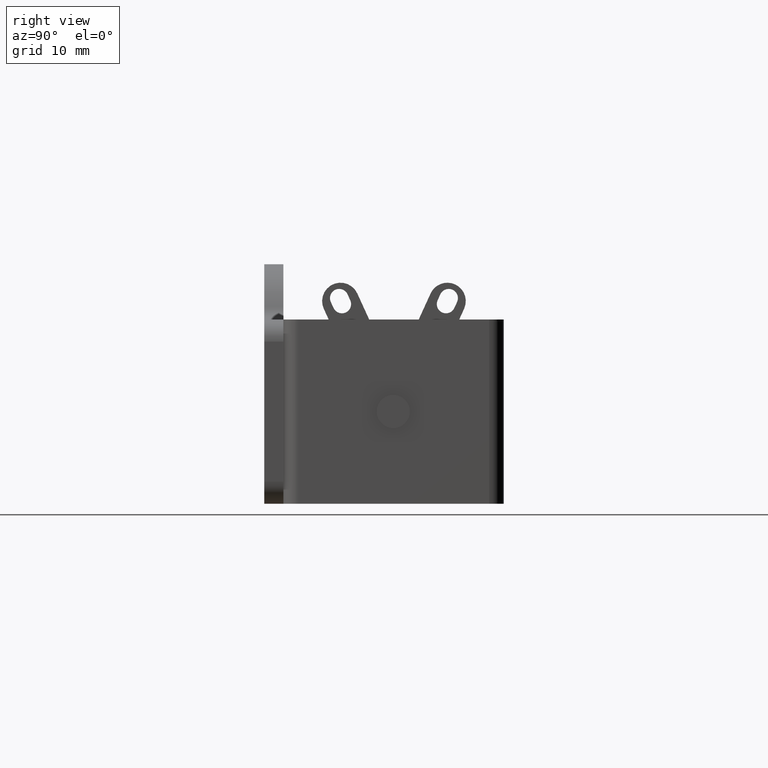
[diagram: clean part render]
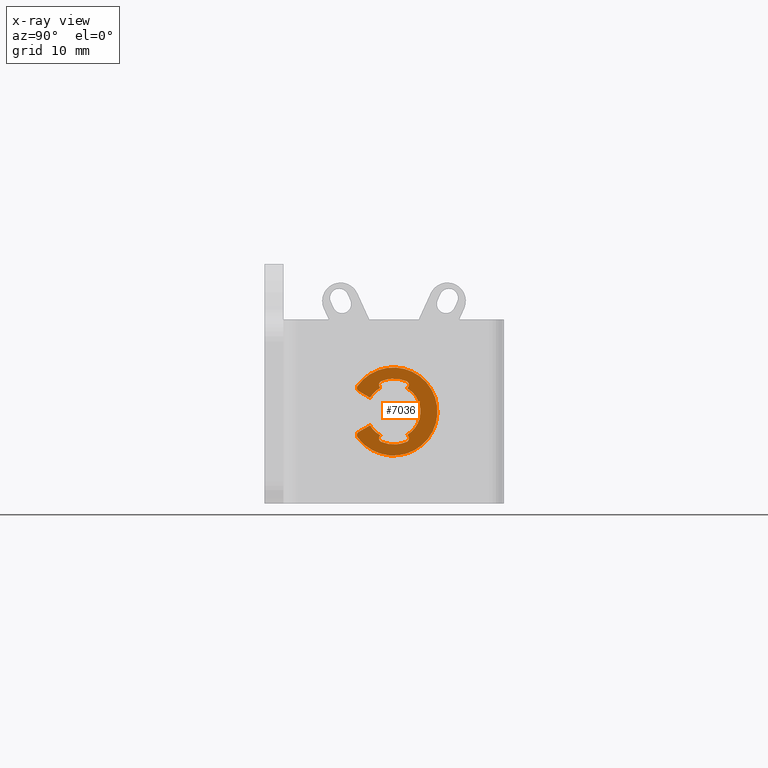
[diagram: x-ray — body ghosted, one internal face saturated and labeled with its STEP entity id]
A machine part, right view, then the same camera in x-ray: the body is ghosted and one INTERNAL B-rep face — a face not visible from any outside direction — is saturated and labeled: STEP entity #7036.
In plain terms, the highlighted face is a freeform B-spline surface patch.
Its self-contained STEP definition (entity closure, byte-faithful):
#5924=CARTESIAN_POINT('',(-13.394188072535799,15.634642578350650,-7.595901090670741));
#5925=VERTEX_POINT('',#5924);
#5940=CARTESIAN_POINT('',(-13.394507521461280,15.740497918040401,-7.779247917265851));
#5941=VERTEX_POINT('',#5940);
#5949=CARTESIAN_POINT('',(-13.394188072535799,15.634642578350650,-7.595901090670741));
#5950=CARTESIAN_POINT('',(-13.394294556154570,15.669927691580080,-7.657016699534936));
#5951=CARTESIAN_POINT('',(-13.394401039166789,15.705212804809969,-7.718132308399925));
#5952=CARTESIAN_POINT('',(-13.394507521461280,15.740497918040401,-7.779247917265852));
#5953=B_SPLINE_CURVE_WITH_KNOTS('',3,(#5949,#5950,#5951,#5952),.UNSPECIFIED.,.F.,.U.,(4,4),(0.000000230940371,0.000211941860757),.UNSPECIFIED.);
#5954=EDGE_CURVE('',#5925,#5941,#5953,.T.);
#5975=CARTESIAN_POINT('',(-13.393885198870960,15.874294017471749,-6.884803029452139));
#5976=VERTEX_POINT('',#5975);
#6009=CARTESIAN_POINT('',(-13.393885198870960,15.874294017471749,-6.884803029452139));
#6010=CARTESIAN_POINT('',(-13.393852671443661,15.841369339470310,-6.898609978234049));
#6011=CARTESIAN_POINT('',(-13.393825569946539,15.810498773929620,-6.915654850024847));
#6012=CARTESIAN_POINT('',(-13.393781847207791,15.752705583860140,-6.955967782170945));
#6013=CARTESIAN_POINT('',(-13.393765168046031,15.725530149280010,-6.979571363412464));
#6014=CARTESIAN_POINT('',(-13.393744094033609,15.677437112314379,-7.031295217031982));
#6015=CARTESIAN_POINT('',(-13.393739443690450,15.656304117774340,-7.059456409271756));
#6016=CARTESIAN_POINT('',(-13.393741593586860,15.629044801567440,-7.105202250649390));
#6017=CARTESIAN_POINT('',(-13.393743870465590,15.620710958097270,-7.121059764872320));
#6018=CARTESIAN_POINT('',(-13.393751430403730,15.605940495012780,-7.153203643918285));
#6019=CARTESIAN_POINT('',(-13.393761991989820,15.592949288055189,-7.185958419383739));
#6020=CARTESIAN_POINT('',(-13.393778529609900,15.583463606698359,-7.219916795028826));
#6021=CARTESIAN_POINT('',(-13.393798143944300,15.575763704385389,-7.254488306670489));
#6022=CARTESIAN_POINT('',(-13.393809566850170,15.572803412661990,-7.272173244827762));
#6023=CARTESIAN_POINT('',(-13.393847827901331,15.566835662745071,-7.325011496777696));
#6024=CARTESIAN_POINT('',(-13.393878707709920,15.566611590933009,-7.360212081242091));
#6025=CARTESIAN_POINT('',(-13.393933187632189,15.571859590484420,-7.412975898005944));
#6026=CARTESIAN_POINT('',(-13.393952848240749,15.574572089893680,-7.430663003318383));
#6027=CARTESIAN_POINT('',(-13.393994357116981,15.581831283746670,-7.465444634490916));
#6028=CARTESIAN_POINT('',(-13.394016147613829,15.586357089012740,-7.482508621703020));
#6029=CARTESIAN_POINT('',(-13.394084563311630,15.602546214547230,-7.532748147570711));
#6030=CARTESIAN_POINT('',(-13.394134201421810,15.616791491257620,-7.564982100855305));
#6031=CARTESIAN_POINT('',(-13.394188072535799,15.634642578350650,-7.595901090670741));
#6032=B_SPLINE_CURVE_WITH_KNOTS('',3,(#6009,#6010,#6011,#6012,#6013,#6014,#6015,#6016,#6017,#6018,#6019,#6020,#6021,#6022,#6023,#6024,#6025,#6026,#6027,#6028,#6029,#6030,#6031),.UNSPECIFIED.,.F.,.U.,(4,2,2,2,2,1,2,2,2,2,2,4),(0.0,0.125000000000003,0.250000000000007,0.375000000000010,0.437500000000009,0.500000000000007,0.562500000000006,0.625000000000004,0.750000000000001,0.812500000000002,0.875000000000002,1.0),.UNSPECIFIED.);
#6033=EDGE_CURVE('',#5976,#5925,#6032,.T.);
#6054=CARTESIAN_POINT('',(-13.397295398578139,19.325705982528302,-6.884803029452139));
#6055=VERTEX_POINT('',#6054);
#6083=CARTESIAN_POINT('',(-13.397295398578100,19.325705982528302,-6.884803029452153));
#6084=CARTESIAN_POINT('',(-13.397024036966860,19.051099161110180,-6.769646783479987));
#6085=CARTESIAN_POINT('',(-13.396745985161161,18.769714089394618,-6.683644664452713));
#6086=CARTESIAN_POINT('',(-13.396319283054661,18.337882995289789,-6.596592486826117));
#6087=CARTESIAN_POINT('',(-13.396175432787491,18.192301405139329,-6.574619879081069));
#6088=CARTESIAN_POINT('',(-13.395957175448590,17.971413645167949,-6.552479917990615));
#6089=CARTESIAN_POINT('',(-13.395883835531770,17.897189250436970,-6.546898846582851));
#6090=CARTESIAN_POINT('',(-13.395737143075980,17.748726482463411,-6.539471806326688));
#6091=CARTESIAN_POINT('',(-13.395663999312250,17.674699407165800,-6.537626456047482));
#6092=CARTESIAN_POINT('',(-13.395299272645170,17.305565202244260,-6.537554276303117));
#6093=CARTESIAN_POINT('',(-13.395010637476290,17.013432520240158,-6.566525376515247));
#6094=CARTESIAN_POINT('',(-13.394653751672630,16.652210810368949,-6.638803935946918));
#6095=CARTESIAN_POINT('',(-13.394582571707630,16.580165485050980,-6.655079428079104));
#6096=CARTESIAN_POINT('',(-13.394440612883409,16.436479679829951,-6.691332261738662));
#6097=CARTESIAN_POINT('',(-13.394369703078860,16.364706658501451,-6.711353505128992));
#6098=CARTESIAN_POINT('',(-13.394158930955079,16.151367037839311,-6.776672591735119));
#6099=CARTESIAN_POINT('',(-13.394020846383450,16.011598165302750,-6.827224597354304));
#6100=CARTESIAN_POINT('',(-13.393885198870960,15.874294017471749,-6.884803029452139));
#6101=B_SPLINE_CURVE_WITH_KNOTS('',3,(#6083,#6084,#6085,#6086,#6087,#6088,#6089,#6090,#6091,#6092,#6093,#6094,#6095,#6096,#6097,#6098,#6099,#6100),.UNSPECIFIED.,.F.,.U.,(4,2,2,2,2,2,2,2,4),(0.0,0.249999999999997,0.374999999999996,0.437499999999998,0.499999999999999,0.749999999999998,0.812499999999998,0.874999999999998,1.0),.UNSPECIFIED.);
#6102=EDGE_CURVE('',#6055,#5976,#6101,.T.);
#6123=CARTESIAN_POINT('',(-13.398062292906401,19.565357421649349,-7.595901090670741));
#6124=VERTEX_POINT('',#6123);
#6157=CARTESIAN_POINT('',(-13.398062292906401,19.565357421649360,-7.595901090670746));
#6158=CARTESIAN_POINT('',(-13.398044339357570,19.583208576796551,-7.564981982982048));
#6159=CARTESIAN_POINT('',(-13.398023485814351,19.597464858522361,-7.532728700831761));
#6160=CARTESIAN_POINT('',(-13.397976135569330,19.619068068129192,-7.465657850617525));
#6161=CARTESIAN_POINT('',(-13.397949273140160,19.626413114996151,-7.430420254409860));
#6162=CARTESIAN_POINT('',(-13.397891721643409,19.633388015655179,-7.360137798465456));
#6163=CARTESIAN_POINT('',(-13.397860965124490,19.633164592696730,-7.324929742665833));
#6164=CARTESIAN_POINT('',(-13.397811636461030,19.627174035098960,-7.272015812567125));
#6165=CARTESIAN_POINT('',(-13.397794636554339,19.624209565430441,-7.254348807667081));
#6166=CARTESIAN_POINT('',(-13.397760334550769,19.616510855707521,-7.219821751636646));
#6167=CARTESIAN_POINT('',(-13.397725533250050,19.607026074690150,-7.185885316579706));
#6168=CARTESIAN_POINT('',(-13.397689685853020,19.594022310422488,-7.153112544718685));
#6169=CARTESIAN_POINT('',(-13.397653274627000,19.579225895935242,-7.120932569427093));
#6170=CARTESIAN_POINT('',(-13.397634690238929,19.570877902608672,-7.105063362146425));
#6171=CARTESIAN_POINT('',(-13.397579243722900,19.543646251432701,-7.059391569342249));
#6172=CARTESIAN_POINT('',(-13.397542406115800,19.522518303766930,-7.031235929663315));
#6173=CARTESIAN_POINT('',(-13.397487195312380,19.486403681489620,-6.992411842008711));
#6174=CARTESIAN_POINT('',(-13.397468689630321,19.473538717791950,-6.979974502527822));
#6175=CARTESIAN_POINT('',(-13.397432284232289,19.446707667845509,-6.956681937655262));
#6176=CARTESIAN_POINT('',(-13.397414416307670,19.432776558754529,-6.945838250287176));
#6177=CARTESIAN_POINT('',(-13.397361769442540,19.389480714159362,-6.915646114012420));
#6178=CARTESIAN_POINT('',(-13.397327934083030,19.358630579157520,-6.898609944110671));
#6179=CARTESIAN_POINT('',(-13.397295398578100,19.325705982528302,-6.884803029452145));
#6180=B_SPLINE_CURVE_WITH_KNOTS('',3,(#6157,#6158,#6159,#6160,#6161,#6162,#6163,#6164,#6165,#6166,#6167,#6168,#6169,#6170,#6171,#6172,#6173,#6174,#6175,#6176,#6177,#6178,#6179),.UNSPECIFIED.,.F.,.U.,(4,2,2,2,2,1,2,2,2,2,2,4),(0.0,0.125000000000005,0.250000000000010,0.375000000000016,0.437500000000017,0.500000000000019,0.562500000000021,0.625000000000023,0.750000000000020,0.812500000000015,0.875000000000009,1.0),.UNSPECIFIED.);
#6181=EDGE_CURVE('',#6124,#6055,#6180,.T.);
#6193=CARTESIAN_POINT('',(-13.398208864458001,19.419618310491099,-7.848328635846780));
#6194=VERTEX_POINT('',#6193);
#6210=CARTESIAN_POINT('',(-13.398208864457990,19.419618310491121,-7.848328635846792));
#6211=CARTESIAN_POINT('',(-13.398160008538481,19.468198014210859,-7.764186120787564));
#6212=CARTESIAN_POINT('',(-13.398111151261830,19.516777717930250,-7.680043605728924));
#6213=CARTESIAN_POINT('',(-13.398062292906401,19.565357421649381,-7.595901090670757));
#6214=B_SPLINE_CURVE_WITH_KNOTS('',3,(#6210,#6211,#6212,#6213),.UNSPECIFIED.,.F.,.U.,(4,4),(0.002773442507184,0.003064920766353),.UNSPECIFIED.);
#6215=EDGE_CURVE('',#6194,#6124,#6214,.T.);
#6227=CARTESIAN_POINT('',(-13.394507521461280,15.740497918040401,-14.220752082734140));
#6228=VERTEX_POINT('',#6227);
#6245=CARTESIAN_POINT('',(-13.394188072535799,15.634642578350650,-14.404098909329260));
#6246=VERTEX_POINT('',#6245);
#6252=CARTESIAN_POINT('',(-13.394507521461280,15.740497918040409,-14.220752082734140));
#6253=CARTESIAN_POINT('',(-13.394401039166789,15.705212804809980,-14.281867691600070));
#6254=CARTESIAN_POINT('',(-13.394294556154570,15.669927691580080,-14.342983300465059));
#6255=CARTESIAN_POINT('',(-13.394188072535799,15.634642578350650,-14.404098909329260));
#6256=B_SPLINE_CURVE_WITH_KNOTS('',3,(#6252,#6253,#6254,#6255),.UNSPECIFIED.,.F.,.U.,(4,4),(0.002853212945607,0.003064923865993),.UNSPECIFIED.);
#6257=EDGE_CURVE('',#6228,#6246,#6256,.T.);
#6305=CARTESIAN_POINT('',(-13.393885198870960,15.874294017471749,-15.115196970547849));
#6306=VERTEX_POINT('',#6305);
#6312=CARTESIAN_POINT('',(-13.394188072535799,15.634642578350650,-14.404098909329260));
#6313=CARTESIAN_POINT('',(-13.394134201276080,15.616791442969641,-14.435017982781950));
#6314=CARTESIAN_POINT('',(-13.394084529779880,15.602535169323160,-14.467271234450910));
#6315=CARTESIAN_POINT('',(-13.393993207705289,15.580931962007901,-14.534342034082970));
#6316=CARTESIAN_POINT('',(-13.393951188131510,15.573586908732990,-14.569579610896200));
#6317=CARTESIAN_POINT('',(-13.393878642568730,15.566611989451481,-14.639862045665581));
#6318=CARTESIAN_POINT('',(-13.393847755204391,15.566835400524820,-14.675070097252931));
#6319=CARTESIAN_POINT('',(-13.393809459809241,15.572825941499740,-14.727984030835479));
#6320=CARTESIAN_POINT('',(-13.393798058731770,15.575790406273709,-14.745651041261960));
#6321=CARTESIAN_POINT('',(-13.393778481960091,15.583489107865899,-14.780178109167910));
#6322=CARTESIAN_POINT('',(-13.393761962302650,15.592973882127369,-14.814114557237270));
#6323=CARTESIAN_POINT('',(-13.393751402536150,15.605977642923440,-14.846887344199869));
#6324=CARTESIAN_POINT('',(-13.393743847084760,15.620774055957471,-14.879067335562571));
#6325=CARTESIAN_POINT('',(-13.393741579563191,15.629122050001801,-14.894936552220759));
#6326=CARTESIAN_POINT('',(-13.393739455731410,15.656353706777400,-14.940608372875561));
#6327=CARTESIAN_POINT('',(-13.393744103931351,15.677481661048740,-14.968764028546129));
#6328=CARTESIAN_POINT('',(-13.393759943554381,15.713596297062820,-15.007588136917921));
#6329=CARTESIAN_POINT('',(-13.393766768439271,15.726461266646210,-15.020025483201509));
#6330=CARTESIAN_POINT('',(-13.393783229458229,15.753292323285160,-15.043318055406241));
#6331=CARTESIAN_POINT('',(-13.393792828191611,15.767223435219959,-15.054161745310090));
#6332=CARTESIAN_POINT('',(-13.393825590119819,15.810519286369260,-15.084353886757970));
#6333=CARTESIAN_POINT('',(-13.393852671526339,15.841369423152260,-15.101390056857939));
#6334=CARTESIAN_POINT('',(-13.393885198870960,15.874294017471749,-15.115196970547849));
#6335=B_SPLINE_CURVE_WITH_KNOTS('',3,(#6312,#6313,#6314,#6315,#6316,#6317,#6318,#6319,#6320,#6321,#6322,#6323,#6324,#6325,#6326,#6327,#6328,#6329,#6330,#6331,#6332,#6333,#6334),.UNSPECIFIED.,.F.,.U.,(4,2,2,2,2,1,2,2,2,2,2,4),(0.0,0.125000000000003,0.250000000000006,0.375000000000008,0.437500000000010,0.500000000000012,0.562500000000014,0.625000000000015,0.750000000000019,0.812500000000014,0.875000000000009,1.0),.UNSPECIFIED.);
#6336=EDGE_CURVE('',#6246,#6306,#6335,.T.);
#6379=CARTESIAN_POINT('',(-13.397295398578139,19.325705982528302,-15.115196970547849));
#6380=VERTEX_POINT('',#6379);
#6386=CARTESIAN_POINT('',(-13.393885198870960,15.874294017471749,-15.115196970547849));
#6387=CARTESIAN_POINT('',(-13.394156492439629,16.148900838943032,-15.230353216542319));
#6388=CARTESIAN_POINT('',(-13.394434490769720,16.430285910709170,-15.316355335578359));
#6389=CARTESIAN_POINT('',(-13.394861138204760,16.862117004880609,-15.403407513203160));
#6390=CARTESIAN_POINT('',(-13.395004974501720,17.007698595051739,-15.425380120945119));
#6391=CARTESIAN_POINT('',(-13.395223217727390,17.228586355051331,-15.447520082027850));
#6392=CARTESIAN_POINT('',(-13.395296554075481,17.302810749796912,-15.453101153432669));
#6393=CARTESIAN_POINT('',(-13.395443241779100,17.451273517759599,-15.460528193680659));
#6394=CARTESIAN_POINT('',(-13.395516384359860,17.525300593051739,-15.462373543956071));
#6395=CARTESIAN_POINT('',(-13.395881110980680,17.894434797945749,-15.462445723682890));
#6396=CARTESIAN_POINT('',(-13.396169764889470,18.186567479927099,-15.433474623461230));
#6397=CARTESIAN_POINT('',(-13.396526696099389,18.547789189770231,-15.361196064022749));
#6398=CARTESIAN_POINT('',(-13.396597886244720,18.619834515082619,-15.344920571889450));
#6399=CARTESIAN_POINT('',(-13.396739867589490,18.763520320292599,-15.308667738228159));
#6400=CARTESIAN_POINT('',(-13.396810789761069,18.835293341613710,-15.288646494837550));
#6401=CARTESIAN_POINT('',(-13.397021601900480,19.048632962225732,-15.223327408241380));
#6402=CARTESIAN_POINT('',(-13.397159717044101,19.188401834729351,-15.172775402632251));
#6403=CARTESIAN_POINT('',(-13.397295398578100,19.325705982528302,-15.115196970547840));
#6404=B_SPLINE_CURVE_WITH_KNOTS('',3,(#6386,#6387,#6388,#6389,#6390,#6391,#6392,#6393,#6394,#6395,#6396,#6397,#6398,#6399,#6400,#6401,#6402,#6403),.UNSPECIFIED.,.F.,.U.,(4,2,2,2,2,2,2,2,4),(0.0,0.249999999999998,0.374999999999995,0.437499999999993,0.499999999999992,0.749999999999991,0.812499999999993,0.874999999999994,1.0),.UNSPECIFIED.);
#6405=EDGE_CURVE('',#6306,#6380,#6404,.T.);
#6453=CARTESIAN_POINT('',(-13.398062292906401,19.565357421649349,-14.404098909329260));
#6454=VERTEX_POINT('',#6453);
#6460=CARTESIAN_POINT('',(-13.397295398578100,19.325705982528309,-15.115196970547849));
#6461=CARTESIAN_POINT('',(-13.397327934165620,19.358630662741611,-15.101390020838380));
#6462=CARTESIAN_POINT('',(-13.397361789805499,19.389501224670141,-15.084345150044170));
#6463=CARTESIAN_POINT('',(-13.397432074293009,19.447294400208889,-15.044032229849231));
#6464=CARTESIAN_POINT('',(-13.397468941795379,19.474469824518341,-15.020428659781800));
#6465=CARTESIAN_POINT('',(-13.397542483686721,19.522562848427569,-14.968704830175369));
#6466=CARTESIAN_POINT('',(-13.397579329065090,19.543695836079991,-14.940543654269471));
#6467=CARTESIAN_POINT('',(-13.397634855364309,19.570955144562440,-14.894797846703520));
#6468=CARTESIAN_POINT('',(-13.397653421211810,19.579288988946040,-14.878940339936859));
#6469=CARTESIAN_POINT('',(-13.397689785993530,19.594059455075080,-14.846796475138380));
#6470=CARTESIAN_POINT('',(-13.397725610512500,19.607050684183179,-14.814041721086589));
#6471=CARTESIAN_POINT('',(-13.397760431281190,19.616536353606929,-14.780083356387101));
#6472=CARTESIAN_POINT('',(-13.397794772501699,19.624236263766271,-14.745511863131840));
#6473=CARTESIAN_POINT('',(-13.397811785657780,19.627196561283480,-14.727826930516100));
#6474=CARTESIAN_POINT('',(-13.397861035959890,19.633164330373219,-14.674988674835729));
#6475=CARTESIAN_POINT('',(-13.397891786353821,19.633388413943571,-14.639788088303970));
#6476=CARTESIAN_POINT('',(-13.397934986496111,19.628140432124699,-14.587024269050310));
#6477=CARTESIAN_POINT('',(-13.397948973416760,19.625427939674200,-14.569337165394961));
#6478=CARTESIAN_POINT('',(-13.397975504514321,19.618168750221471,-14.534555501221771));
#6479=CARTESIAN_POINT('',(-13.397988032872590,19.613642945370781,-14.517491497316231));
#6480=CARTESIAN_POINT('',(-13.398023497110470,19.597453815467642,-14.467251920939651));
#6481=CARTESIAN_POINT('',(-13.398044339406130,19.583208528509061,-14.435017933381589));
#6482=CARTESIAN_POINT('',(-13.398062292906401,19.565357421649370,-14.404098909329260));
#6483=B_SPLINE_CURVE_WITH_KNOTS('',3,(#6460,#6461,#6462,#6463,#6464,#6465,#6466,#6467,#6468,#6469,#6470,#6471,#6472,#6473,#6474,#6475,#6476,#6477,#6478,#6479,#6480,#6481,#6482),.UNSPECIFIED.,.F.,.U.,(4,2,2,2,2,1,2,2,2,2,2,4),(0.0,0.125000000000002,0.250000000000004,0.375000000000006,0.437500000000007,0.500000000000007,0.562500000000008,0.625000000000008,0.750000000000011,0.812500000000009,0.875000000000008,1.0),.UNSPECIFIED.);
#6484=EDGE_CURVE('',#6380,#6454,#6483,.T.);
#6504=CARTESIAN_POINT('',(-13.398208864458001,19.419618310491099,-14.151671364153220));
#6505=VERTEX_POINT('',#6504);
#6513=CARTESIAN_POINT('',(-13.398062292906401,19.565357421649381,-14.404098909329241));
#6514=CARTESIAN_POINT('',(-13.398111151261830,19.516777717930260,-14.319956394271079));
#6515=CARTESIAN_POINT('',(-13.398160008538481,19.468198014210859,-14.235813879212440));
#6516=CARTESIAN_POINT('',(-13.398208864457990,19.419618310491121,-14.151671364153209));
#6517=B_SPLINE_CURVE_WITH_KNOTS('',3,(#6513,#6514,#6515,#6516),.UNSPECIFIED.,.F.,.U.,(4,4),(0.000000230940137,0.000291709199306),.UNSPECIFIED.);
#6518=EDGE_CURVE('',#6454,#6505,#6517,.T.);
#6543=CARTESIAN_POINT('',(-13.389782818931220,12.817647507663020,-8.238907501189560));
#6544=VERTEX_POINT('',#6543);
#6545=CARTESIAN_POINT('',(-13.389095905318280,12.661372739547019,-7.514449450230190));
#6546=VERTEX_POINT('',#6545);
#6547=CARTESIAN_POINT('',(-13.389782818931220,12.817647507663020,-8.238907501189560));
#6548=CARTESIAN_POINT('',(-13.389716911730989,12.787243108502761,-8.221353513149840));
#6549=CARTESIAN_POINT('',(-13.389653989596971,12.759206479201049,-8.200943969218802));
#6550=CARTESIAN_POINT('',(-13.389533840031939,12.707680730489621,-8.154640535669831));
#6551=CARTESIAN_POINT('',(-13.389476023225750,12.683975002186530,-8.128389092773757));
#6552=CARTESIAN_POINT('',(-13.389370546696370,12.643057219302349,-8.072221989481784));
#6553=CARTESIAN_POINT('',(-13.389322570193491,12.625681147761330,-8.042285701255082));
#6554=CARTESIAN_POINT('',(-13.389257697030081,12.604286609036070,-7.994574916224741));
#6555=CARTESIAN_POINT('',(-13.389237204118849,12.597926958444679,-7.978131889474806));
#6556=CARTESIAN_POINT('',(-13.389199528374730,12.587081409797729,-7.945032118397355));
#6557=CARTESIAN_POINT('',(-13.389164922772780,12.578024481924020,-7.911562738865459));
#6558=CARTESIAN_POINT('',(-13.389136296749241,12.572477487123740,-7.877368051384718));
#6559=CARTESIAN_POINT('',(-13.389110678566780,12.568709312500070,-7.842805780729639));
#6560=CARTESIAN_POINT('',(-13.389099320817911,12.567716908713860,-7.825236879516496));
#6561=CARTESIAN_POINT('',(-13.389070392980310,12.567520640421289,-7.772829173492349));
#6562=CARTESIAN_POINT('',(-13.389057864890420,12.571014039801000,-7.738377778876001));
#6563=CARTESIAN_POINT('',(-13.389045900223520,12.585099720848071,-7.670429035494994));
#6564=CARTESIAN_POINT('',(-13.389046647082790,12.595865525003340,-7.636704423392669));
#6565=CARTESIAN_POINT('',(-13.389061434105789,12.623759970729250,-7.573155655563944));
#6566=CARTESIAN_POINT('',(-13.389075317576699,12.640908605320931,-7.542976509453506));
#6567=CARTESIAN_POINT('',(-13.389095905318280,12.661372739547019,-7.514449450230201));
#6568=B_SPLINE_CURVE_WITH_KNOTS('',3,(#6547,#6548,#6549,#6550,#6551,#6552,#6553,#6554,#6555,#6556,#6557,#6558,#6559,#6560,#6561,#6562,#6563,#6564,#6565,#6566,#6567),.UNSPECIFIED.,.F.,.U.,(4,2,2,2,2,1,2,2,2,2,4),(0.0,0.125000000000004,0.250000000000007,0.375000000000011,0.437500000000010,0.500000000000009,0.562500000000007,0.625000000000006,0.750000000000004,0.875000000000002,1.0),.UNSPECIFIED.);
#6569=EDGE_CURVE('',#6544,#6546,#6568,.T.);
#6667=CARTESIAN_POINT('',(-13.389782818931220,12.817647507664059,-13.761092498809839));
#6668=VERTEX_POINT('',#6667);
#6679=CARTESIAN_POINT('',(-13.389095905318280,12.661372739547019,-14.485550549769799));
#6680=VERTEX_POINT('',#6679);
#6681=CARTESIAN_POINT('',(-13.389095905318280,12.661372739547019,-14.485550549769799));
#6682=CARTESIAN_POINT('',(-13.389075317576680,12.640908605314090,-14.457023490536971));
#6683=CARTESIAN_POINT('',(-13.389061453010241,12.623778865275019,-14.426870914542739));
#6684=CARTESIAN_POINT('',(-13.389046668889160,12.595923381764960,-14.363443815000769));
#6685=CARTESIAN_POINT('',(-13.389045885628970,12.585147690329130,-14.329754238062289));
#6686=CARTESIAN_POINT('',(-13.389057831176380,12.571023066803811,-14.261713702296239));
#6687=CARTESIAN_POINT('',(-13.389070357964330,12.567533207178560,-14.227276335588790));
#6688=CARTESIAN_POINT('',(-13.389099184893020,12.567709635278311,-14.174988503139771));
#6689=CARTESIAN_POINT('',(-13.389110546610549,12.568694044574080,-14.157385960240269));
#6690=CARTESIAN_POINT('',(-13.389136192794350,12.572458092826110,-14.122758608059749));
#6691=CARTESIAN_POINT('',(-13.389164834444481,12.578004074220971,-14.088531867129490));
#6692=CARTESIAN_POINT('',(-13.389199398683781,12.587046864930990,-14.055091273105230));
#6693=CARTESIAN_POINT('',(-13.389236987452900,12.597861824665500,-14.022049095221600));
#6694=CARTESIAN_POINT('',(-13.389257426878030,12.604200322864280,-14.005633423446760));
#6695=CARTESIAN_POINT('',(-13.389322420478219,12.625626202885231,-13.957805245146320));
#6696=CARTESIAN_POINT('',(-13.389370419603180,12.643011282305320,-13.927857635757290));
#6697=CARTESIAN_POINT('',(-13.389475724449980,12.683855744322070,-13.871758108859400));
#6698=CARTESIAN_POINT('',(-13.389533570034301,12.707566907374650,-13.845470670310730));
#6699=CARTESIAN_POINT('',(-13.389653928482209,12.759178311244719,-13.799072449081841));
#6700=CARTESIAN_POINT('',(-13.389716911730959,12.787243108493460,-13.778646486855530));
#6701=CARTESIAN_POINT('',(-13.389782818931220,12.817647507664059,-13.761092498809839));
#6702=B_SPLINE_CURVE_WITH_KNOTS('',3,(#6681,#6682,#6683,#6684,#6685,#6686,#6687,#6688,#6689,#6690,#6691,#6692,#6693,#6694,#6695,#6696,#6697,#6698,#6699,#6700,#6701),.UNSPECIFIED.,.F.,.U.,(4,2,2,2,2,1,2,2,2,2,4),(0.0,0.124999999999994,0.249999999999988,0.374999999999982,0.437499999999982,0.499999999999982,0.562499999999982,0.624999999999982,0.749999999999988,0.874999999999994,1.0),.UNSPECIFIED.);
#6703=EDGE_CURVE('',#6680,#6668,#6702,.T.);
#6720=CARTESIAN_POINT('',(-13.393112235384240,14.353589040940699,-12.874316241113039));
#6721=VERTEX_POINT('',#6720);
#6722=CARTESIAN_POINT('',(-13.393112235384249,14.353589040940699,-12.874316241113039));
#6723=CARTESIAN_POINT('',(-13.392002441262809,13.841608529830021,-13.169908327022640));
#6724=CARTESIAN_POINT('',(-13.390892632083080,13.329628018743810,-13.465500412918100));
#6725=CARTESIAN_POINT('',(-13.389782818931240,12.817647507664059,-13.761092498809839));
#6726=B_SPLINE_CURVE_WITH_KNOTS('',3,(#6722,#6723,#6724,#6725),.UNSPECIFIED.,.F.,.U.,(4,4),(0.003748869597372,0.005522425121447),.UNSPECIFIED.);
#6727=EDGE_CURVE('',#6721,#6668,#6726,.T.);
#6767=CARTESIAN_POINT('',(-13.393112235384240,14.353589040940699,-9.125683758886961));
#6768=VERTEX_POINT('',#6767);
#6769=CARTESIAN_POINT('',(-13.389782818931240,12.817647507663020,-8.238907501189562));
#6770=CARTESIAN_POINT('',(-13.390892632083080,13.329628018743160,-8.534499587081523));
#6771=CARTESIAN_POINT('',(-13.392002441262809,13.841608529829729,-8.830091672977201));
#6772=CARTESIAN_POINT('',(-13.393112235384249,14.353589040940699,-9.125683758886959));
#6773=QUASI_UNIFORM_CURVE('',3,(#6769,#6770,#6771,#6772),.UNSPECIFIED.,.F.,.U.);
#6774=EDGE_CURVE('',#6544,#6768,#6773,.T.);
#6912=CARTESIAN_POINT('',(-13.389095905318280,12.661372739547030,-7.514449450230202));
#6913=CARTESIAN_POINT('',(-13.391651695712621,15.201818347271329,-3.973061307225890));
#6914=CARTESIAN_POINT('',(-13.395825847856271,19.350909173635682,-5.307350739213856));
#6915=CARTESIAN_POINT('',(-13.399999999999910,23.500000000000028,-6.641640171201820));
#6916=CARTESIAN_POINT('',(-13.399999999999910,23.500000000000028,-11.0));
#6917=CARTESIAN_POINT('',(-13.399999999999910,23.500000000000028,-15.358359828798179));
#6918=CARTESIAN_POINT('',(-13.395825847856271,19.350909173635671,-16.692649260786151));
#6919=CARTESIAN_POINT('',(-13.391651695712621,15.201818347271315,-18.026938692774113));
#6920=CARTESIAN_POINT('',(-13.389095905318280,12.661372739547030,-14.485550549769791));
#6928=(BOUNDED_CURVE()B_SPLINE_CURVE(2,(#6912,#6913,#6914,#6915,#6916,#6917,#6918,#6919,#6920),.UNSPECIFIED.,.F.,.U.)B_SPLINE_CURVE_WITH_KNOTS((3,2,2,2,3),(0.0,0.250000000000000,0.500000000000000,0.750000000000000,1.0),.UNSPECIFIED.)CURVE()GEOMETRIC_REPRESENTATION_ITEM()RATIONAL_B_SPLINE_CURVE((1.0,0.808128966706636,1.0,0.808128966706636,1.0,0.808128966706636,1.0,0.808128966706636,1.0))REPRESENTATION_ITEM(''));
#6929=EDGE_CURVE('',#6546,#6680,#6928,.T.);
#6951=CARTESIAN_POINT('',(-13.394507521461280,15.740497918040390,-14.220752082734160));
#6952=CARTESIAN_POINT('',(-13.393625517481549,14.863789428465426,-13.736296908361988));
#6953=CARTESIAN_POINT('',(-13.393112235384249,14.353589040940680,-12.874316241113050));
#6961=(BOUNDED_CURVE()B_SPLINE_CURVE(2,(#6951,#6952,#6953),.UNSPECIFIED.,.F.,.U.)CURVE()GEOMETRIC_REPRESENTATION_ITEM()QUASI_UNIFORM_CURVE()RATIONAL_B_SPLINE_CURVE((1.0,0.964891317340859,1.0))REPRESENTATION_ITEM(''));
#6962=EDGE_CURVE('',#6228,#6721,#6961,.T.);
#6968=CARTESIAN_POINT('',(-13.393155614768281,14.339207978183120,-9.267398365674055));
#6969=CARTESIAN_POINT('',(-13.388589686875140,12.217131096672210,-8.111570068151989));
#6970=CARTESIAN_POINT('',(-13.395282699286968,16.453521630288069,-5.385553767191481));
#6971=CARTESIAN_POINT('',(-13.392135761442791,15.741915280793508,-1.640125099556138));
#6972=CARTESIAN_POINT('',(-13.398693830355899,19.844172507014122,-8.221487339593327));
#6973=CARTESIAN_POINT('',(-13.397822477238140,21.394488432493429,-6.367925912490810));
#6974=CARTESIAN_POINT('',(-13.402104961424838,23.234823383740174,-11.057420911995171));
#6975=CARTESIAN_POINT('',(-13.403509193033488,27.047061584193347,-11.095726725425473));
#6976=CARTESIAN_POINT('',(-13.398637189081470,19.787871302827782,-13.824649409460269));
#6977=CARTESIAN_POINT('',(-13.397728050250880,21.300628378255301,-15.708988921412370));
#6978=CARTESIAN_POINT('',(-13.395169416738099,16.340919221915389,-16.591877906925362));
#6979=CARTESIAN_POINT('',(-13.391946907468265,15.554195172317263,-20.322251117399254));
#6980=CARTESIAN_POINT('',(-13.393121235396260,14.305035017515410,-12.668331610274580));
#6981=CARTESIAN_POINT('',(-13.388532372830641,12.160161161692979,-13.781285013181940));
#6989=(BOUNDED_SURFACE()B_SPLINE_SURFACE(1,2,((#6968,#6970,#6972,#6974,#6976,#6978,#6980),(#6969,#6971,#6973,#6975,#6977,#6979,#6981)),.UNSPECIFIED.,.F.,.F.,.U.)B_SPLINE_SURFACE_WITH_KNOTS((2,2),(3,2,2,3),(0.0,2.416437500142172),(0.0,11.435129755892969,22.870259511785932,34.305389267678898),.UNSPECIFIED.)GEOMETRIC_REPRESENTATION_ITEM()RATIONAL_B_SPLINE_SURFACE(((1.0,0.633830967398710,1.0,0.633830967398710,1.0,0.633830967398710,1.0),(1.0,0.633830967398710,1.0,0.633830967398710,1.0,0.633830967398710,1.0)))REPRESENTATION_ITEM('')SURFACE());
#6990=CARTESIAN_POINT('',(-13.398208864457990,19.419618310491099,-7.848328635846790));
#6991=CARTESIAN_POINT('',(-13.399999999999908,21.199999999999974,-8.921294284493262));
#6992=CARTESIAN_POINT('',(-13.399999999999910,21.199999999999982,-11.0));
#6993=CARTESIAN_POINT('',(-13.399999999999908,21.199999999999974,-13.078705715506741));
#6994=CARTESIAN_POINT('',(-13.398208864457990,19.419618310491099,-14.151671364153209));
#7002=(BOUNDED_CURVE()B_SPLINE_CURVE(2,(#6990,#6991,#6992,#6993,#6994),.UNSPECIFIED.,.F.,.U.)B_SPLINE_CURVE_WITH_KNOTS((3,2,3),(0.0,0.500000000000000,1.0),.UNSPECIFIED.)CURVE()GEOMETRIC_REPRESENTATION_ITEM()RATIONAL_B_SPLINE_CURVE((1.0,0.870680784637768,1.0,0.870680784637768,1.0))REPRESENTATION_ITEM(''));
#7003=EDGE_CURVE('',#6194,#6505,#7002,.T.);
#7004=ORIENTED_EDGE('',*,*,#7003,.F.);
#7005=ORIENTED_EDGE('',*,*,#6215,.T.);
#7006=ORIENTED_EDGE('',*,*,#6181,.T.);
#7007=ORIENTED_EDGE('',*,*,#6102,.T.);
#7008=ORIENTED_EDGE('',*,*,#6033,.T.);
#7009=ORIENTED_EDGE('',*,*,#5954,.T.);
#7010=CARTESIAN_POINT('',(-13.393112235384249,14.353589040940680,-9.125683758886948));
#7011=CARTESIAN_POINT('',(-13.393625517481551,14.863789428465415,-8.263703091638009));
#7012=CARTESIAN_POINT('',(-13.394507521461280,15.740497918040401,-7.779247917265836));
#7020=(BOUNDED_CURVE()B_SPLINE_CURVE(2,(#7010,#7011,#7012),.UNSPECIFIED.,.F.,.U.)CURVE()GEOMETRIC_REPRESENTATION_ITEM()QUASI_UNIFORM_CURVE()RATIONAL_B_SPLINE_CURVE((1.0,0.964891317340858,1.0))REPRESENTATION_ITEM(''));
#7021=EDGE_CURVE('',#6768,#5941,#7020,.T.);
#7022=ORIENTED_EDGE('',*,*,#7021,.F.);
#7023=ORIENTED_EDGE('',*,*,#6774,.F.);
#7024=ORIENTED_EDGE('',*,*,#6569,.T.);
#7025=ORIENTED_EDGE('',*,*,#6929,.T.);
#7026=ORIENTED_EDGE('',*,*,#6703,.T.);
#7027=ORIENTED_EDGE('',*,*,#6727,.F.);
#7028=ORIENTED_EDGE('',*,*,#6962,.F.);
#7029=ORIENTED_EDGE('',*,*,#6257,.T.);
#7030=ORIENTED_EDGE('',*,*,#6336,.T.);
#7031=ORIENTED_EDGE('',*,*,#6405,.T.);
#7032=ORIENTED_EDGE('',*,*,#6484,.T.);
#7033=ORIENTED_EDGE('',*,*,#6518,.T.);
#7034=EDGE_LOOP('',(#7004,#7005,#7006,#7007,#7008,#7009,#7022,#7023,#7024,#7025,#7026,#7027,#7028,#7029,#7030,#7031,#7032,#7033));
#7035=FACE_OUTER_BOUND('',#7034,.T.);
#7036=ADVANCED_FACE('',(#7035),#6989,.T.);